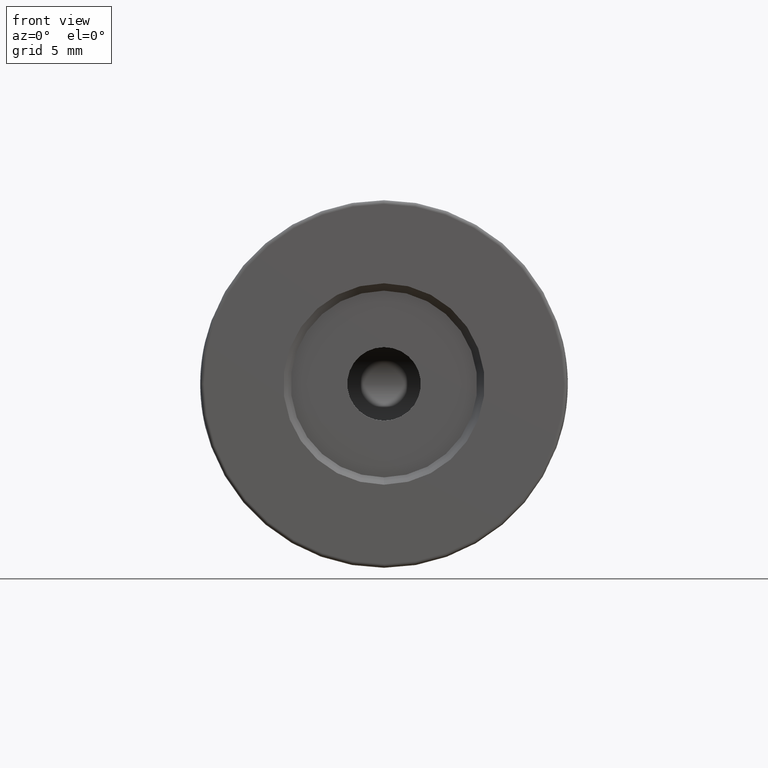
[diagram: clean part render]
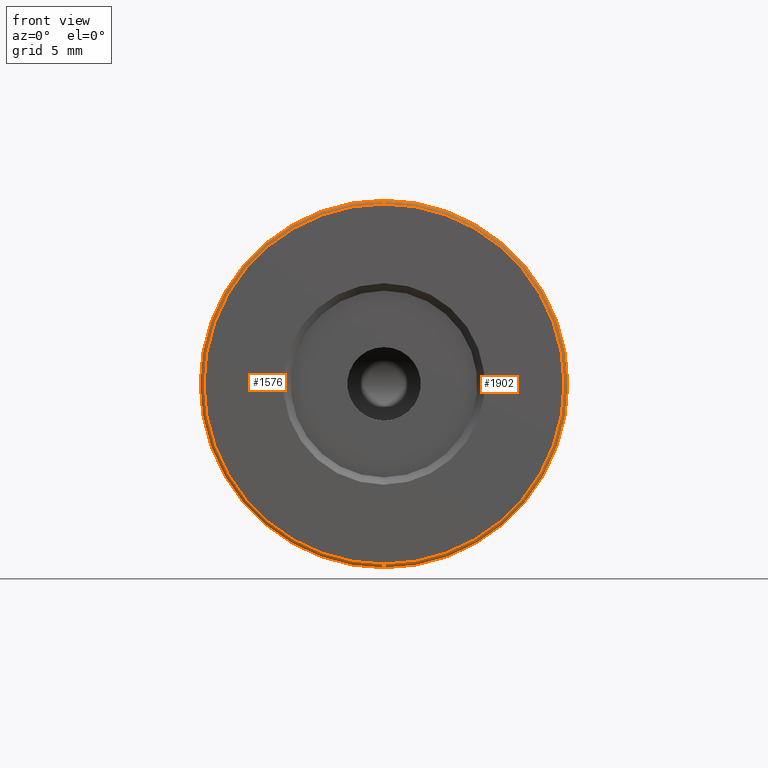
[diagram: same view with one multi-face feature highlighted, each face labeled with its STEP entity id]
A machine part, front view. The highlighted faces form ONE feature: a constant-radius fillet chain: 2 tangent blend faces with common blend radius 0.25 mm. The faces share edges in the B-rep.
Their STEP definitions:
[1] entity #1902 (Torus):
#88 = ORIENTED_EDGE ( 'NONE', *, *, #1645, .F. ) ;
#203 = CIRCLE ( 'NONE', #487, 12.24999999999999645 ) ;
#228 = VERTEX_POINT ( 'NONE', #2678 ) ;
#453 = CARTESIAN_POINT ( 'NONE',  ( -22.50520183104453409, -16.10174781523061327, 37.75000000000000711 ) ) ;
#487 = AXIS2_PLACEMENT_3D ( 'NONE', #541, #1891, #2154 ) ;
#493 = VERTEX_POINT ( 'NONE', #2233 ) ;
#541 = CARTESIAN_POINT ( 'NONE',  ( -22.50520183104453409, -16.10174781523061327, 50.00000000000000000 ) ) ;
#714 = AXIS2_PLACEMENT_3D ( 'NONE', #737, #1002, #2635 ) ;
#721 = DIRECTION ( 'NONE',  ( 0.0000000000000000000, 0.0000000000000000000, 1.000000000000000000 ) ) ;
#737 = CARTESIAN_POINT ( 'NONE',  ( -22.50520183104453409, -15.85174781523061149, 50.00000000000000000 ) ) ;
#995 = ORIENTED_EDGE ( 'NONE', *, *, #1100, .F. ) ;
#1002 = DIRECTION ( 'NONE',  ( 0.0000000000000000000, 1.000000000000000000, 0.0000000000000000000 ) ) ;
#1100 = EDGE_CURVE ( 'NONE', #3166, #228, #1364, .T. ) ;
#1162 = AXIS2_PLACEMENT_3D ( 'NONE', #2538, #2963, #1924 ) ;
#1261 = FACE_OUTER_BOUND ( 'NONE', #1292, .T. ) ;
#1292 = EDGE_LOOP ( 'NONE', ( #2906, #2726, #88, #995 ) ) ;
#1356 = CARTESIAN_POINT ( 'NONE',  ( -22.50520183104453409, -15.85174781523061149, 62.25000000000000000 ) ) ;
#1364 = CIRCLE ( 'NONE', #3303, 0.2500000000000002220 ) ;
#1524 = CARTESIAN_POINT ( 'NONE',  ( -22.50520183104453409, -15.85174781523061149, 50.00000000000000000 ) ) ;
#1586 = VERTEX_POINT ( 'NONE', #453 ) ;
#1645 = EDGE_CURVE ( 'NONE', #228, #493, #2769, .T. ) ;
#1653 = DIRECTION ( 'NONE',  ( 0.0000000000000000000, 0.0000000000000000000, 1.000000000000000000 ) ) ;
#1891 = DIRECTION ( 'NONE',  ( -0.0000000000000000000, -1.000000000000000000, -0.0000000000000000000 ) ) ;
#1902 = ADVANCED_FACE ( 'NONE', ( #1261 ), #3046, .T. ) ;
#1924 = DIRECTION ( 'NONE',  ( 0.0000000000000000000, 0.0000000000000000000, -1.000000000000000000 ) ) ;
#2052 = AXIS2_PLACEMENT_3D ( 'NONE', #1524, #3105, #721 ) ;
#2154 = DIRECTION ( 'NONE',  ( 0.0000000000000000000, 0.0000000000000000000, 1.000000000000000000 ) ) ;
#2160 = DIRECTION ( 'NONE',  ( -1.000000000000000000, 0.0000000000000000000, 0.0000000000000000000 ) ) ;
#2193 = EDGE_CURVE ( 'NONE', #1586, #3166, #203, .T. ) ;
#2224 = CIRCLE ( 'NONE', #1162, 0.2500000000000002220 ) ;
#2233 = CARTESIAN_POINT ( 'NONE',  ( -22.50520183104453409, -15.85174781523061149, 37.50000000000000711 ) ) ;
#2538 = CARTESIAN_POINT ( 'NONE',  ( -22.50520183104453409, -15.85174781523061149, 37.75000000000000711 ) ) ;
#2549 = CARTESIAN_POINT ( 'NONE',  ( -22.50520183104453409, -16.10174781523061327, 62.25000000000000000 ) ) ;
#2564 = EDGE_CURVE ( 'NONE', #1586, #493, #2224, .T. ) ;
#2635 = DIRECTION ( 'NONE',  ( 0.0000000000000000000, 0.0000000000000000000, 1.000000000000000000 ) ) ;
#2678 = CARTESIAN_POINT ( 'NONE',  ( -22.50520183104453409, -15.85174781523061149, 62.50000000000000000 ) ) ;
#2726 = ORIENTED_EDGE ( 'NONE', *, *, #2564, .T. ) ;
#2769 = CIRCLE ( 'NONE', #2052, 12.49999999999999645 ) ;
#2906 = ORIENTED_EDGE ( 'NONE', *, *, #2193, .F. ) ;
#2963 = DIRECTION ( 'NONE',  ( 1.000000000000000000, -0.0000000000000000000, 1.224646799147353207E-16 ) ) ;
#3046 = TOROIDAL_SURFACE ( 'NONE', #714, 12.25000000000000000, 0.2500000000000000000 ) ;
#3105 = DIRECTION ( 'NONE',  ( 0.0000000000000000000, 1.000000000000000000, 0.0000000000000000000 ) ) ;
#3166 = VERTEX_POINT ( 'NONE', #2549 ) ;
#3303 = AXIS2_PLACEMENT_3D ( 'NONE', #1356, #2160, #1653 ) ;
[2] entity #1576 (Torus):
#105 = CIRCLE ( 'NONE', #1674, 12.24999999999999645 ) ;
#228 = VERTEX_POINT ( 'NONE', #2678 ) ;
#357 = DIRECTION ( 'NONE',  ( -0.0000000000000000000, -1.000000000000000000, -0.0000000000000000000 ) ) ;
#391 = CARTESIAN_POINT ( 'NONE',  ( -22.50520183104453409, -15.85174781523061149, 50.00000000000000000 ) ) ;
#404 = EDGE_CURVE ( 'NONE', #3166, #1586, #105, .T. ) ;
#453 = CARTESIAN_POINT ( 'NONE',  ( -22.50520183104453409, -16.10174781523061327, 37.75000000000000711 ) ) ;
#493 = VERTEX_POINT ( 'NONE', #2233 ) ;
#501 = EDGE_LOOP ( 'NONE', ( #2098, #1964, #634, #1736 ) ) ;
#634 = ORIENTED_EDGE ( 'NONE', *, *, #1100, .T. ) ;
#707 = EDGE_CURVE ( 'NONE', #493, #228, #1640, .T. ) ;
#1055 = CARTESIAN_POINT ( 'NONE',  ( -22.50520183104453409, -15.85174781523061149, 50.00000000000000000 ) ) ;
#1100 = EDGE_CURVE ( 'NONE', #3166, #228, #1364, .T. ) ;
#1162 = AXIS2_PLACEMENT_3D ( 'NONE', #2538, #2963, #1924 ) ;
#1356 = CARTESIAN_POINT ( 'NONE',  ( -22.50520183104453409, -15.85174781523061149, 62.25000000000000000 ) ) ;
#1364 = CIRCLE ( 'NONE', #3303, 0.2500000000000002220 ) ;
#1482 = DIRECTION ( 'NONE',  ( 0.0000000000000000000, 0.0000000000000000000, 1.000000000000000000 ) ) ;
#1540 = DIRECTION ( 'NONE',  ( 0.0000000000000000000, 1.000000000000000000, 0.0000000000000000000 ) ) ;
#1576 = ADVANCED_FACE ( 'NONE', ( #2310 ), #3382, .T. ) ;
#1586 = VERTEX_POINT ( 'NONE', #453 ) ;
#1640 = CIRCLE ( 'NONE', #2914, 12.49999999999999645 ) ;
#1653 = DIRECTION ( 'NONE',  ( 0.0000000000000000000, 0.0000000000000000000, 1.000000000000000000 ) ) ;
#1674 = AXIS2_PLACEMENT_3D ( 'NONE', #2748, #357, #1482 ) ;
#1736 = ORIENTED_EDGE ( 'NONE', *, *, #707, .F. ) ;
#1742 = DIRECTION ( 'NONE',  ( 0.0000000000000000000, 0.0000000000000000000, 1.000000000000000000 ) ) ;
#1924 = DIRECTION ( 'NONE',  ( 0.0000000000000000000, 0.0000000000000000000, -1.000000000000000000 ) ) ;
#1964 = ORIENTED_EDGE ( 'NONE', *, *, #404, .F. ) ;
#2098 = ORIENTED_EDGE ( 'NONE', *, *, #2564, .F. ) ;
#2160 = DIRECTION ( 'NONE',  ( -1.000000000000000000, 0.0000000000000000000, 0.0000000000000000000 ) ) ;
#2224 = CIRCLE ( 'NONE', #1162, 0.2500000000000002220 ) ;
#2233 = CARTESIAN_POINT ( 'NONE',  ( -22.50520183104453409, -15.85174781523061149, 37.50000000000000711 ) ) ;
#2310 = FACE_OUTER_BOUND ( 'NONE', #501, .T. ) ;
#2538 = CARTESIAN_POINT ( 'NONE',  ( -22.50520183104453409, -15.85174781523061149, 37.75000000000000711 ) ) ;
#2549 = CARTESIAN_POINT ( 'NONE',  ( -22.50520183104453409, -16.10174781523061327, 62.25000000000000000 ) ) ;
#2564 = EDGE_CURVE ( 'NONE', #1586, #493, #2224, .T. ) ;
#2603 = AXIS2_PLACEMENT_3D ( 'NONE', #1055, #1540, #3366 ) ;
#2678 = CARTESIAN_POINT ( 'NONE',  ( -22.50520183104453409, -15.85174781523061149, 62.50000000000000000 ) ) ;
#2748 = CARTESIAN_POINT ( 'NONE',  ( -22.50520183104453409, -16.10174781523061327, 50.00000000000000000 ) ) ;
#2914 = AXIS2_PLACEMENT_3D ( 'NONE', #391, #3078, #1742 ) ;
#2963 = DIRECTION ( 'NONE',  ( 1.000000000000000000, -0.0000000000000000000, 1.224646799147353207E-16 ) ) ;
#3078 = DIRECTION ( 'NONE',  ( 0.0000000000000000000, 1.000000000000000000, 0.0000000000000000000 ) ) ;
#3166 = VERTEX_POINT ( 'NONE', #2549 ) ;
#3303 = AXIS2_PLACEMENT_3D ( 'NONE', #1356, #2160, #1653 ) ;
#3366 = DIRECTION ( 'NONE',  ( 0.0000000000000000000, 0.0000000000000000000, 1.000000000000000000 ) ) ;
#3382 = TOROIDAL_SURFACE ( 'NONE', #2603, 12.25000000000000000, 0.2500000000000000000 ) ;